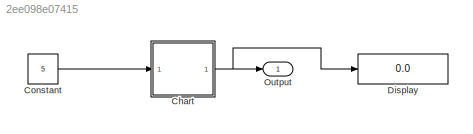
MODEL slx_2ee098e07415
KIND model
CONFIG AbsTol = auto
CONFIG EnableMultiTasking = off
CONFIG FixedStep = auto
CONFIG MaxStep = auto
CONFIG MinStep = auto
CONFIG RelTol = 1e-3
CONFIG SampleTimeConstraint = Unconstrained
CONFIG Solver = FixedStepDiscrete
CONFIG SolverName = FixedStepDiscrete
CONFIG StartTime = 0.0
CONFIG StopTime = 10.0
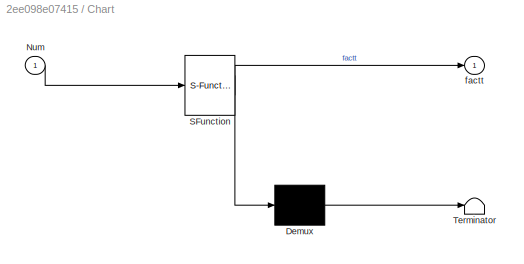
BLOCK [SubSystem] Chart
  ErrorFcn = Stateflow.Translate.translate
  PermitHierarchicalResolution = ExplicitOnly
  Ports = [1, 1]
  RequestExecContextInheritance = off
  SFBlockType = Chart
  TreatAsAtomicUnit = on
BLOCK [Demux] Chart/ Demux 
  Outputs = 1
  Ports = [1, 1]
BLOCK [S-Function] Chart/ SFunction 
  EnableBusSupport = on
  FunctionName = sf_sfun
  PortCounts = [1 2]
  Ports = [1, 2]
  SFcnIsStateOwnerBlock = off
  SFunctionDeploymentMode = off
  Tag = Stateflow S-Function Factorial_Task 3
BLOCK [Terminator] Chart/ Terminator 
BLOCK [Inport] Chart/Num
  IconDisplay = Port number
BLOCK [Outport] Chart/factt
  IconDisplay = Port number
BLOCK [Constant] Constant
  OutDataTypeStr = uint32
  Value = 5
BLOCK [Display] Display
  Decimation = 1
  Ports = [1]
BLOCK [Outport] Output
  IconDisplay = Port number
NET Chart:1 -> Display:1, Output:1
LINE Constant:1 -> Chart:1
note: NET lines group one-source signal fan-out (src -> all destinations, sorted); 1:1 wires keep LINE
CHART Chart states=0 transitions=6
